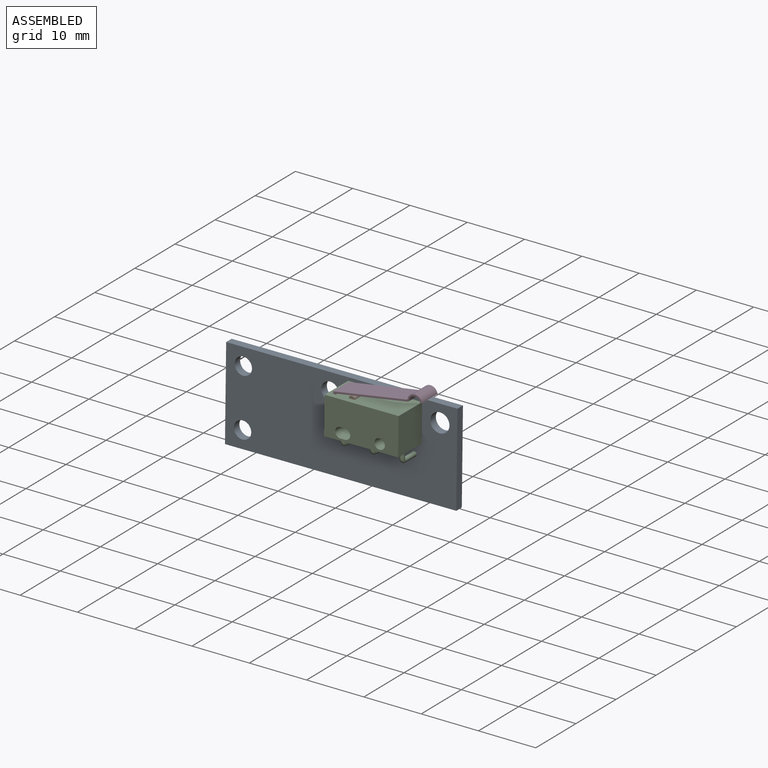
[diagram: assembled view]
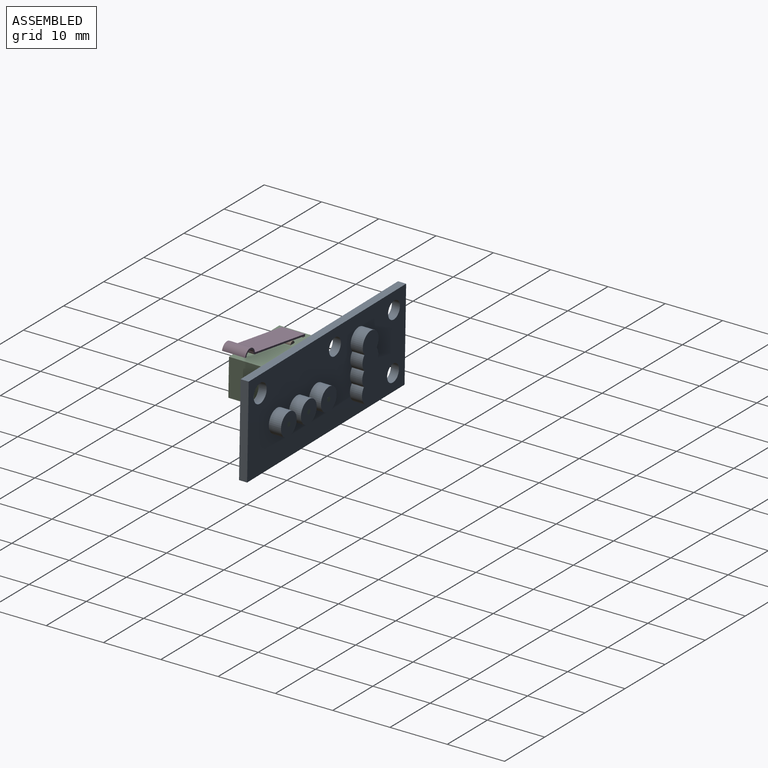
[diagram: assembled view, second angle]
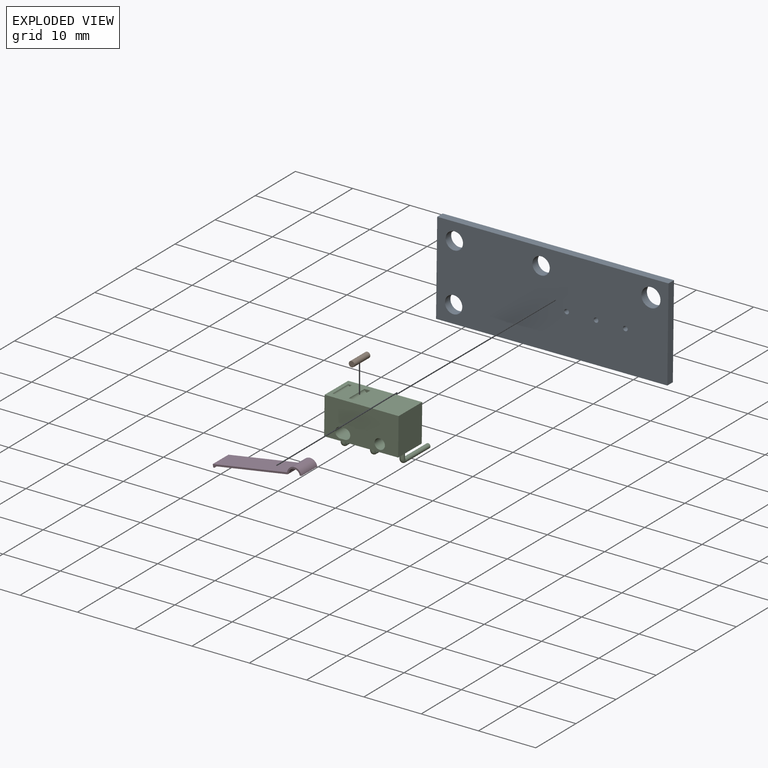
[diagram: exploded view]
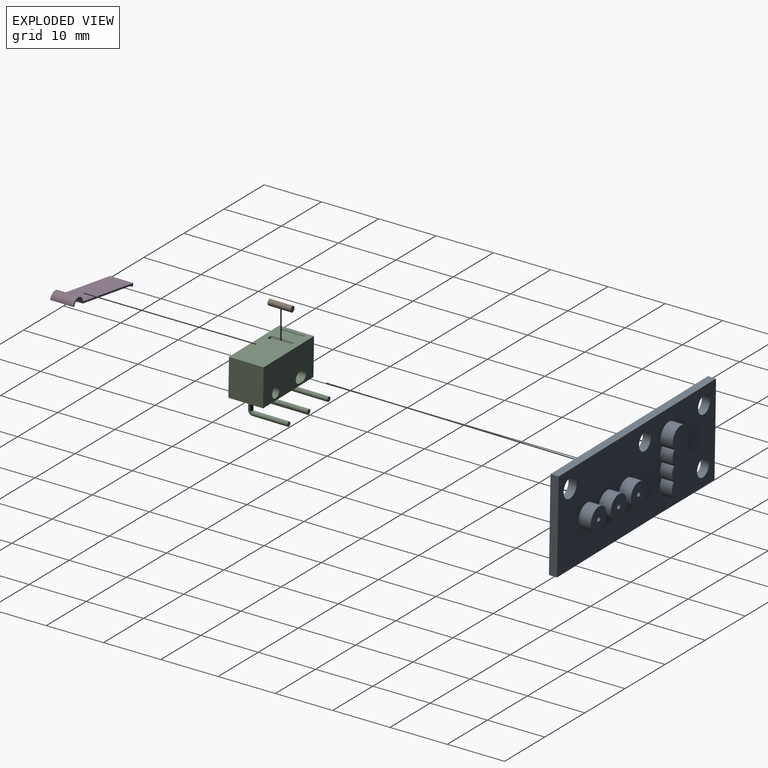
[diagram: exploded view, second angle]
ASSEMBLY  parts=4 mates=3
PART A: 26 faces, bbox 40x3.5x16 mm
  f0: plane 40x1.4mm, normal (0,0,1), area 56mm2, adj f1,f7,f8,f9
  f1: plane 16x1.4mm, normal (-1,0,0), area 22.4mm2, adj f0,f2,f8,f9
  f2: plane 40x1.4mm, normal (0,0,-1), area 56mm2, adj f1,f7,f8,f9
  f3: cylinder r=1.65mm len=3.3mm, axis (0,-1,0), area 14.5mm2, adj f8,f9
  f4: cylinder r=1.5mm len=3mm, axis (0,-1,0), area 13.2mm2, adj f8,f9
  f5: cylinder r=1.5mm len=3mm, axis (0,-1,0), area 13.2mm2, adj f8,f9
  f6: cylinder r=1.5mm len=3mm, axis (0,-1,0), area 13.2mm2, adj f8,f9
  f7: plane 16x1.4mm, normal (1,0,0), area 22.4mm2, adj f0,f2,f8,f9
  f8: plane 40x16mm, normal (0,1,0), area 531.7mm2, adj f0,f1,f2,f3,f4,f5,f6,f7
  f9: plane 40x16mm, normal (0,-1,0), area 608.7mm2, adj f0,f1,f2,f3,f4,f5,f6,f7
  f10: plane 11.62x4mm, normal (0,1,0), area 40.9mm2, adj f11,f12,f13,f14,f15,f16
  f11: cylinder r=2mm len=2.54mm, axis (0,-1,0), area 5.8mm2, adj f8,f10,f12,f16
  f12: cylinder r=2mm len=2.54mm, axis (0,-1,0), area 5.8mm2, adj f8,f10,f11,f13
  f13: cylinder r=2mm len=4mm, axis (0,-1,0), area 19mm2, adj f8,f10,f12,f14
  f14: cylinder r=2mm len=2.54mm, axis (0,-1,0), area 5.8mm2, adj f8,f10,f13,f15
  f15: cylinder r=2mm len=2.54mm, axis (0,-1,0), area 5.8mm2, adj f8,f10,f14,f16
  f16: cylinder r=2mm len=4mm, axis (0,-1,0), area 19mm2, adj f8,f10,f11,f15
  f17: cylinder r=2mm len=4mm, axis (0,-1,0), area 26.4mm2, adj f8,f19
  f18: cylinder r=0.4mm len=3.5mm, axis (0,-1,0), area 8.8mm2, adj f9,f19
  f19: plane 4x4mm, normal (0,1,0), area 12.1mm2, adj f17,f18
  f20: cylinder r=2mm len=4mm, axis (0,-1,0), area 26.4mm2, adj f8,f22
  f21: cylinder r=0.4mm len=3.5mm, axis (0,-1,0), area 8.8mm2, adj f9,f22
  f22: plane 4x4mm, normal (0,1,0), area 12.1mm2, adj f20,f21
  f23: cylinder r=2mm len=4mm, axis (0,-1,0), area 26.4mm2, adj f8,f25
  f24: cylinder r=0.4mm len=3.5mm, axis (0,-1,0), area 8.8mm2, adj f9,f25
  f25: plane 4x4mm, normal (0,1,0), area 12.1mm2, adj f23,f24
PART B: 3 faces, bbox 1x4x1 mm
  f0: cylinder r=0.5mm len=4mm, axis (0,-1,0), area 12.6mm2, adj f1,f2
  f1: plane 1x1mm, normal (0,1,0), area 0.8mm2, adj f0
  f2: plane 1x1mm, normal (0,-1,0), area 0.8mm2, adj f0
PART C: 31 faces, bbox 12.8x9.6x9 mm
  f0: plane 12.8x6mm, normal (0,0,1), area 70.4mm2, adj f1,f10,f11,f12,f25,f26,f27,f28
  f1: plane 6.5x6mm, normal (-1,0,0), area 39mm2, adj f0,f2,f11,f12
  f2: plane 12.8x6mm, normal (0,0,-1), area 75.3mm2, adj f1,f10,f11,f12,f14,f18,f22
  f3: cylinder r=0.9mm len=6mm, axis (0,1,0), area 8.5mm2, adj f4,f8,f11,f12
  f4: cylinder r=0.9mm len=6mm, axis (0,1,0), area 8.5mm2, adj f3,f5,f11,f12
  f5: plane 6x0.8mm, normal (0,0,1), area 4.8mm2, adj f4,f6,f11,f12
  f6: cylinder r=0.9mm len=6mm, axis (0,1,0), area 8.5mm2, adj f5,f7,f11,f12
  f7: cylinder r=0.9mm len=6mm, axis (0,1,0), area 8.5mm2, adj f6,f8,f11,f12
  f8: plane 6x0.8mm, normal (0,0,-1), area 4.8mm2, adj f3,f7,f11,f12
  f9: cylinder r=0.9mm len=6mm, axis (0,1,0), area 33.9mm2, adj f11,f12
  f10: plane 6.5x6mm, normal (1,0,0), area 39mm2, adj f0,f2,f11,f12
  f11: plane 12.8x6.5mm, normal (0,-1,0), area 76.7mm2, adj f0,f1,f2,f3,f4,f5,f6,f7
  f12: plane 12.8x6.5mm, normal (0,1,0), area 76.7mm2, adj f0,f1,f2,f3,f4,f5,f6,f7
  f13: plane 0.8x0.8mm, normal (0,1,0), area 0.5mm2, adj f16
  f14: cylinder r=0.4mm len=1.5mm, axis (0,0,-1), area 3.8mm2, adj f2,f15
  f15: torus R=0.5mm, axis (1,0,0), area 2mm2, adj f14,f16
  f16: cylinder r=0.4mm len=6.1mm, axis (0,1,0), area 15.3mm2, adj f13,f15
  f17: plane 0.8x0.8mm, normal (0,1,0), area 0.5mm2, adj f20
  f18: cylinder r=0.4mm len=1.5mm, axis (0,0,-1), area 3.8mm2, adj f2,f19
  f19: torus R=0.5mm, axis (1,0,0), area 2mm2, adj f18,f20
  f20: cylinder r=0.4mm len=6.1mm, axis (0,1,0), area 15.3mm2, adj f17,f19
  f21: plane 0.8x0.8mm, normal (0,1,0), area 0.5mm2, adj f24
  f22: cylinder r=0.4mm len=1.5mm, axis (0,0,-1), area 3.8mm2, adj f2,f23
  f23: torus R=0.5mm, axis (1,0,0), area 2mm2, adj f22,f24
  f24: cylinder r=0.4mm len=6.1mm, axis (0,1,0), area 15.3mm2, adj f21,f23
  f25: cylinder r=0.3mm len=4mm, axis (0,-1,0), area 3.8mm2, adj f0,f26,f27
  f26: plane 0.6x0.3mm, normal (0,-1,0), area 0.1mm2, adj f0,f25
  f27: plane 0.6x0.3mm, normal (0,1,0), area 0.1mm2, adj f0,f25
  f28: cylinder r=0.5mm len=4mm, axis (0,-1,0), area 6.3mm2, adj f0,f29,f30
  f29: plane 1x0.5mm, normal (0,-1,0), area 0.4mm2, adj f0,f28
  f30: plane 1x0.5mm, normal (0,1,0), area 0.4mm2, adj f0,f28
PART D: 12 faces, bbox 15.5x4x1.5 mm
  f0: cylinder r=0.95mm len=4mm, axis (0,-1,0), area 10.8mm2, adj f1,f9,f10,f11
  f1: plane 4x0.3mm, normal (0,0,-1), area 1.2mm2, adj f0,f2,f10,f11
  f2: cylinder r=1.25mm len=4mm, axis (0,-1,0), area 13.9mm2, adj f1,f3,f10,f11
  f3: cylinder r=0.2mm len=4mm, axis (0,-1,0), area 1mm2, adj f2,f4,f10,f11
  f4: plane 12.85x4mm, normal (0,0,1), area 51.4mm2, adj f3,f5,f10,f11
  f5: plane 4x0.4mm, normal (-1,0,0), area 1.6mm2, adj f4,f6,f10,f11
  f6: cylinder r=0.15mm len=4mm, axis (0,-1,0), area 1.9mm2, adj f5,f7,f10,f11
  f7: plane 4x0.1mm, normal (1,0,0), area 0.4mm2, adj f6,f8,f10,f11
  f8: plane 12.62x4mm, normal (0,0,-1), area 50.5mm2, adj f7,f9,f10,f11
  f9: cylinder r=0.4mm len=4mm, axis (0,-1,0), area 2mm2, adj f0,f8,f10,f11
  f10: plane 15.46x1.5mm, normal (0,1,0), area 5mm2, adj f0,f1,f2,f3,f4,f5,f6,f7
  f11: plane 15.46x1.5mm, normal (0,-1,0), area 5mm2, adj f0,f1,f2,f3,f4,f5,f6,f7
PLACE A rot(axis=(-0.8,0.03,0.6),1.3deg) t=(-4.32,-4.32,3)mm
PLACE B rot(axis=(-0.8,0.03,0.6),1.3deg) t=(30.46,-3.51,28.2)mm
PLACE C rot(axis=(-0.8,0.03,0.6),1.3deg) t=(30.46,-3.51,28.2)mm
PLACE D rot(axis=(-0.1,-0.99,0.09),9.1deg) t=(40.11,-2.32,32.15)mm
MATE revolute D.f6 <-> C.f25  axis (0.01,-1,0.02) through (-1.06,-8.74,39.19)mm
MATE fastened C.f20 <-> A.f17  axis (-0.01,1,-0.02) through (-0.86,-0.29,30.54)mm
MATE fastened B.f0 <-> C.f28  axis (0.01,-1,0.02) through (1.94,-8.7,39.19)mm
